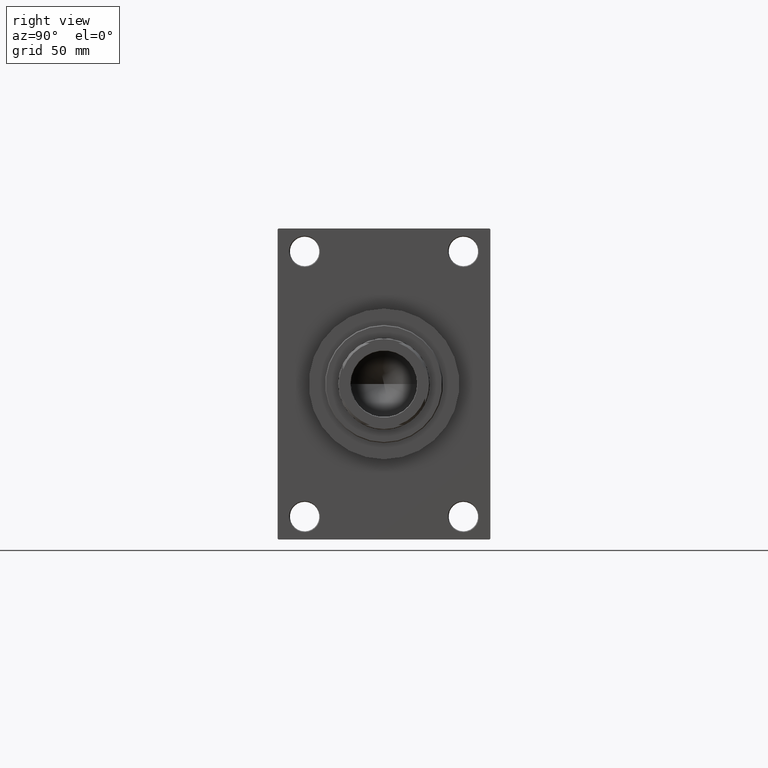
[diagram: clean part render]
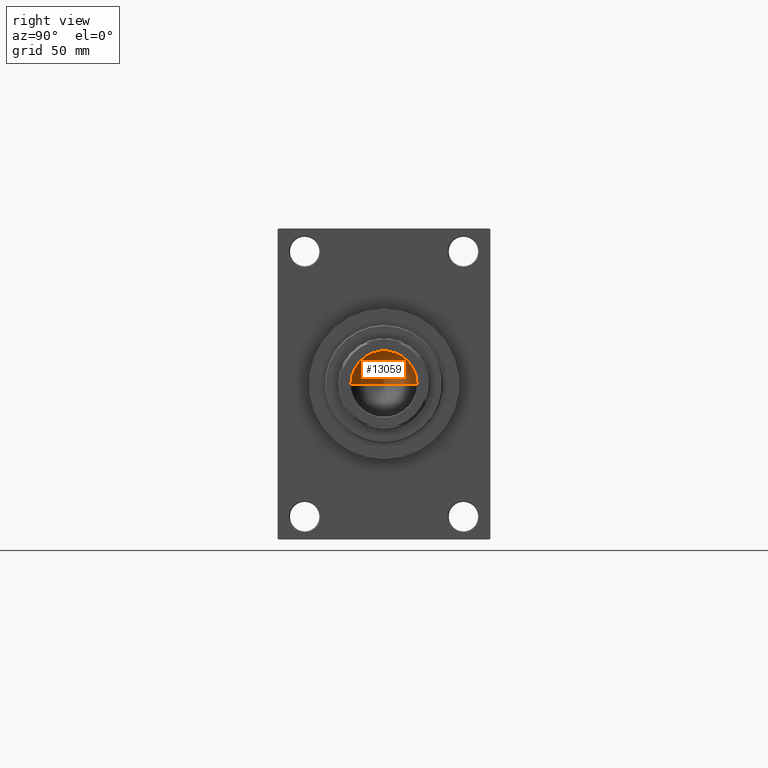
[diagram: same view with one face highlighted and labeled with its STEP entity id]
A machine part, right view. The second image highlights one B-rep face of the part: STEP entity #13059.
In plain terms, the highlighted conical surface has half-angle 59 deg.
Its self-contained STEP definition (entity closure, byte-faithful):
#968 = EDGE_LOOP ( 'NONE', ( #37454, #19347, #21668 ) ) ;
#1658 = VERTEX_POINT ( 'NONE', #29818 ) ;
#1668 = AXIS2_PLACEMENT_3D ( 'NONE', #3268, #37366, #18333 ) ;
#3268 = CARTESIAN_POINT ( 'NONE',  ( 0.000000000000000000, 0.000000000000000000, 257.0000000000000000 ) ) ;
#4011 = CIRCLE ( 'NONE', #1668, 20.24999999999998934 ) ;
#7903 = CARTESIAN_POINT ( 'NONE',  ( 20.24999999999998934, 0.000000000000000000, 257.0000000000000000 ) ) ;
#12898 = VERTEX_POINT ( 'NONE', #7903 ) ;
#13059 = ADVANCED_FACE ( 'NONE', ( #36782 ), #40318, .F. ) ;
#15843 = AXIS2_PLACEMENT_3D ( 'NONE', #29616, #33070, #48126 ) ;
#18333 = DIRECTION ( 'NONE',  ( 1.000000000000000000, 0.000000000000000000, 0.000000000000000000 ) ) ;
#19347 = ORIENTED_EDGE ( 'NONE', *, *, #48561, .T. ) ;
#20994 = LINE ( 'NONE', #43470, #37872 ) ;
#21668 = ORIENTED_EDGE ( 'NONE', *, *, #43157, .T. ) ;
#28346 = LINE ( 'NONE', #28590, #28685 ) ;
#28590 = CARTESIAN_POINT ( 'NONE',  ( -20.24999999999998934, 2.479909768273389117E-15, 257.0000000000000000 ) ) ;
#28685 = VECTOR ( 'NONE', #43402, 1000.000000000000000 ) ;
#29616 = CARTESIAN_POINT ( 'NONE',  ( 0.000000000000000000, 0.000000000000000000, 257.0000000000000000 ) ) ;
#29818 = CARTESIAN_POINT ( 'NONE',  ( -20.24999999999998934, 2.479909768273389117E-15, 257.0000000000000000 ) ) ;
#32120 = DIRECTION ( 'NONE',  ( 0.8571673007021112234, 0.000000000000000000, 0.5150380749100560429 ) ) ;
#33070 = DIRECTION ( 'NONE',  ( -0.000000000000000000, -0.000000000000000000, 1.000000000000000000 ) ) ;
#36782 = FACE_OUTER_BOUND ( 'NONE', #968, .T. ) ;
#37366 = DIRECTION ( 'NONE',  ( -0.000000000000000000, -0.000000000000000000, 1.000000000000000000 ) ) ;
#37454 = ORIENTED_EDGE ( 'NONE', *, *, #40485, .F. ) ;
#37872 = VECTOR ( 'NONE', #32120, 1000.000000000000000 ) ;
#40318 = CONICAL_SURFACE ( 'NONE', #15843, 20.24999999999998934, 1.029744258676652313 ) ;
#40485 = EDGE_CURVE ( 'NONE', #46267, #12898, #20994, .T. ) ;
#43157 = EDGE_CURVE ( 'NONE', #1658, #12898, #4011, .T. ) ;
#43402 = DIRECTION ( 'NONE',  ( -0.8571673007021112234, 1.049727191138617340E-16, 0.5150380749100560429 ) ) ;
#43470 = CARTESIAN_POINT ( 'NONE',  ( 20.24999999999998934, 0.000000000000000000, 257.0000000000000000 ) ) ;
#46267 = VERTEX_POINT ( 'NONE', #47721 ) ;
#47721 = CARTESIAN_POINT ( 'NONE',  ( -1.584115414415908206E-14, 0.000000000000000000, 244.8325724646918786 ) ) ;
#48126 = DIRECTION ( 'NONE',  ( 1.000000000000000000, 0.000000000000000000, 0.000000000000000000 ) ) ;
#48561 = EDGE_CURVE ( 'NONE', #46267, #1658, #28346, .T. ) ;